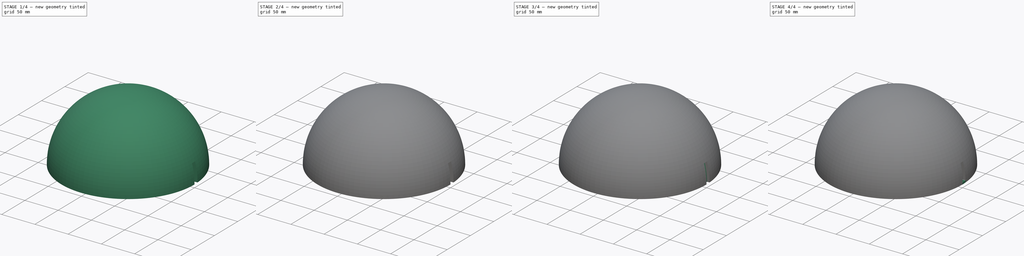
[diagram: build sequence overview — one tinted view per stage of 4, left to right]
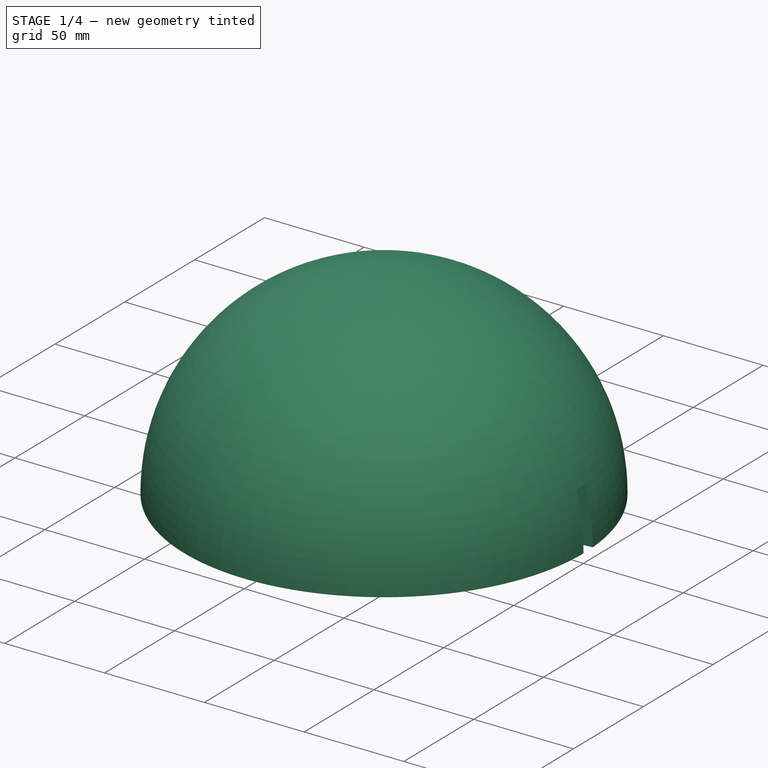
[diagram: stage 1 of 4 — iso view after this stage's code; geometry added in this stage tinted green]
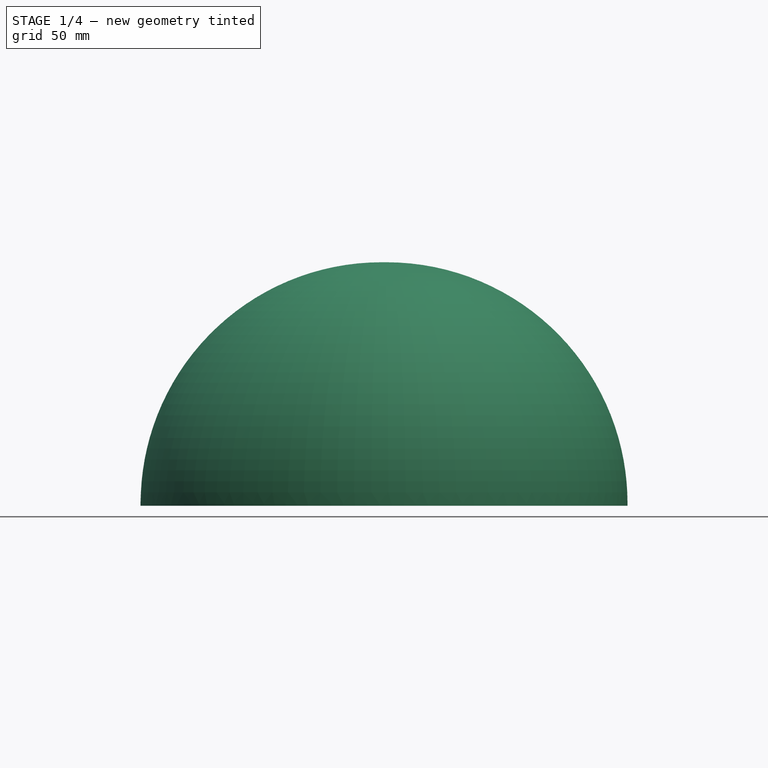
[diagram: stage 1 of 4 — front view after this stage's code; geometry added in this stage tinted green]
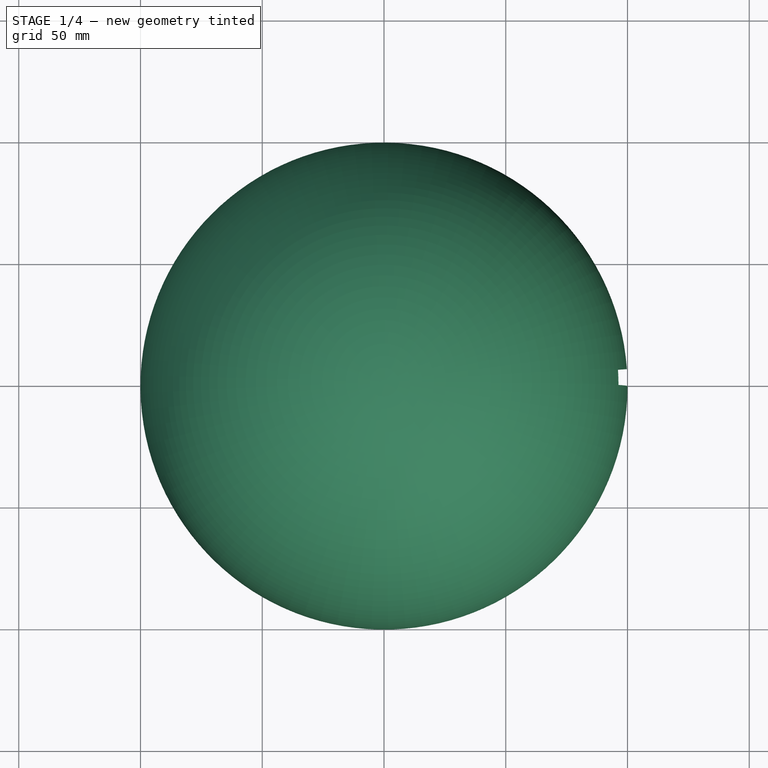
[diagram: stage 1 of 4 — top view after this stage's code; geometry added in this stage tinted green]
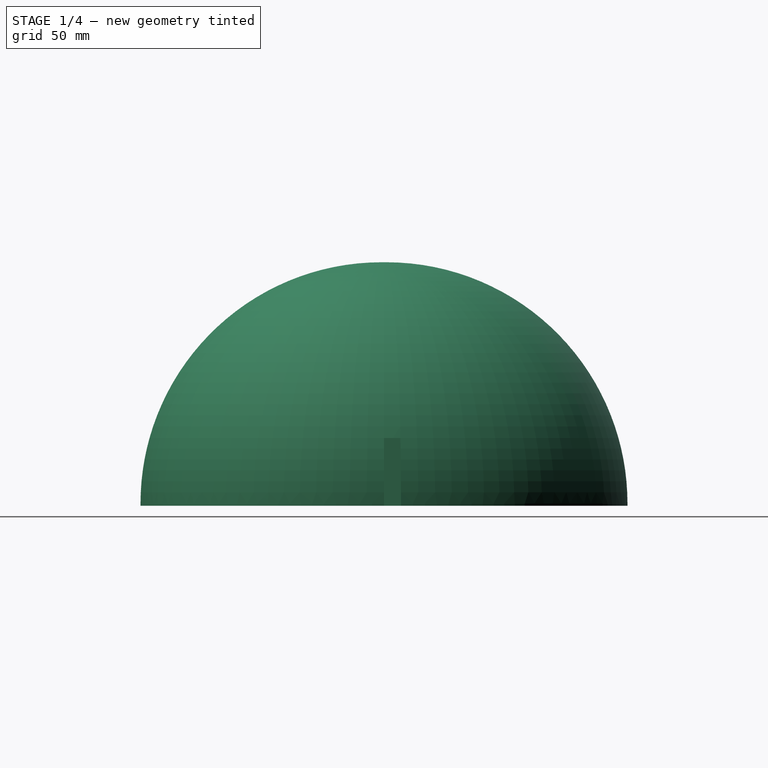
[diagram: stage 1 of 4 — right view after this stage's code; geometry added in this stage tinted green]
FCSTD DOCUMENT  (FreeCAD 0.21R33668 +26 (Git))
Label: cattoy2
License: All rights reserved
LicenseURL: https://en.wikipedia.org/wiki/All_rights_reserved
objects: Sketcher::SketchObject×7, PartDesign::Pad×5, PartDesign::SubtractiveSphere×3, PartDesign::Pocket×2, PartDesign::Fillet×1, PartDesign::Body×1
note: 30 computed .brp shape members not serialized (recipe doc carries the construction recipe); baked Part::Feature solids carry a one-line shape summary decoded from their .brp

FEATURE [Sketcher::SketchObject] Sketch
  FullyConstrained = false
  MapMode = 5
  Support = -> [XY_Plane]
  sketch-geometry (2):
    g0: Circle CenterX=0 CenterY=0 CenterZ=0 NormalX=0 NormalY=0 NormalZ=1 AngleXU=0 Radius=100
    g1: GeomPoint X=95.886 Y=28.3878 Z=0
  constraints (3):
    c: Coincident(g0,g-1)
    c: PointOnObject(g1,g0)
    c: Distance(g0,g1) = 100
FEATURE [PartDesign::Pad] Pad
  Direction = (0,0,1)
  Length = 100
  Length2 = 10
  Profile = -> Sketch
  ReferenceAxis = -> Sketch [N_Axis]
  Type = 0
FEATURE [PartDesign::Fillet] Fillet
  Base = -> Pad [Edge3]
  BaseFeature = -> Pad
  Radius = 99
  SupportTransform = false
  UseAllEdges = false
FEATURE [PartDesign::SubtractiveSphere] Sphere001
  Angle1 = 0
  Angle2 = 16
  Angle3 = 4
  AttacherType = Attacher::AttachEngine3D
  BaseFeature = -> Fillet
  Radius = 101
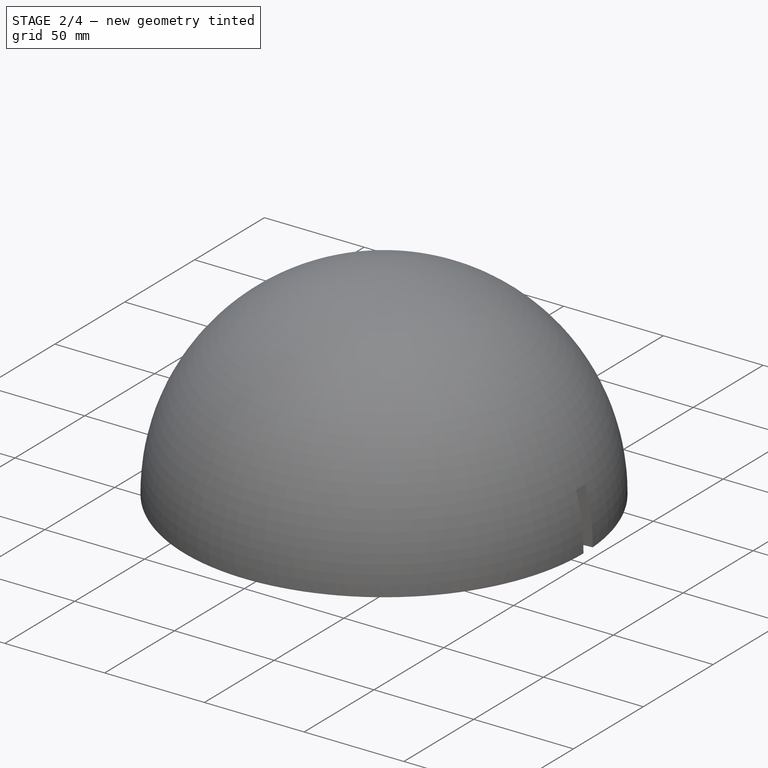
[diagram: stage 2 of 4 — iso view after this stage's code; geometry added in this stage tinted green]
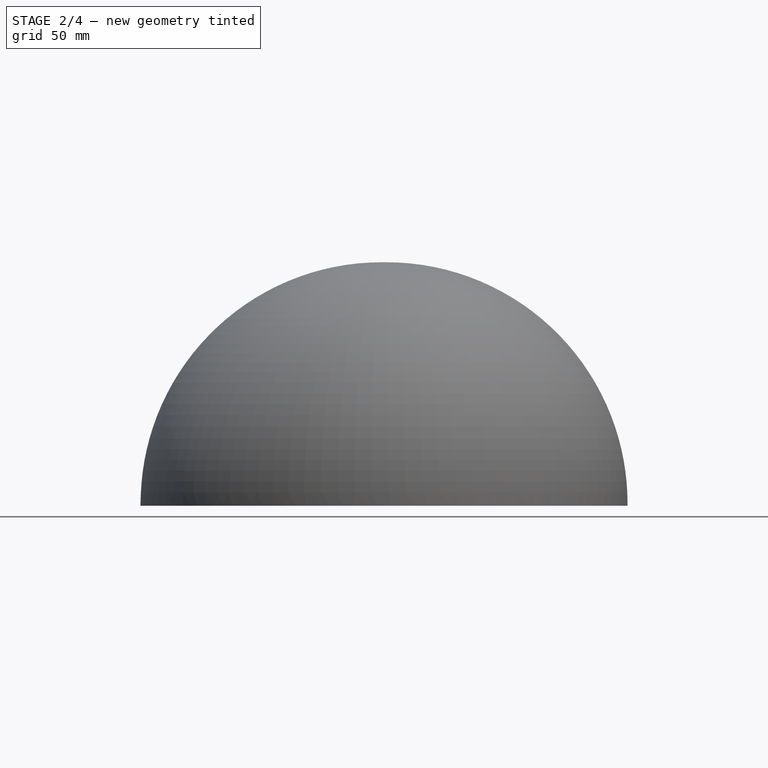
[diagram: stage 2 of 4 — front view after this stage's code; geometry added in this stage tinted green]
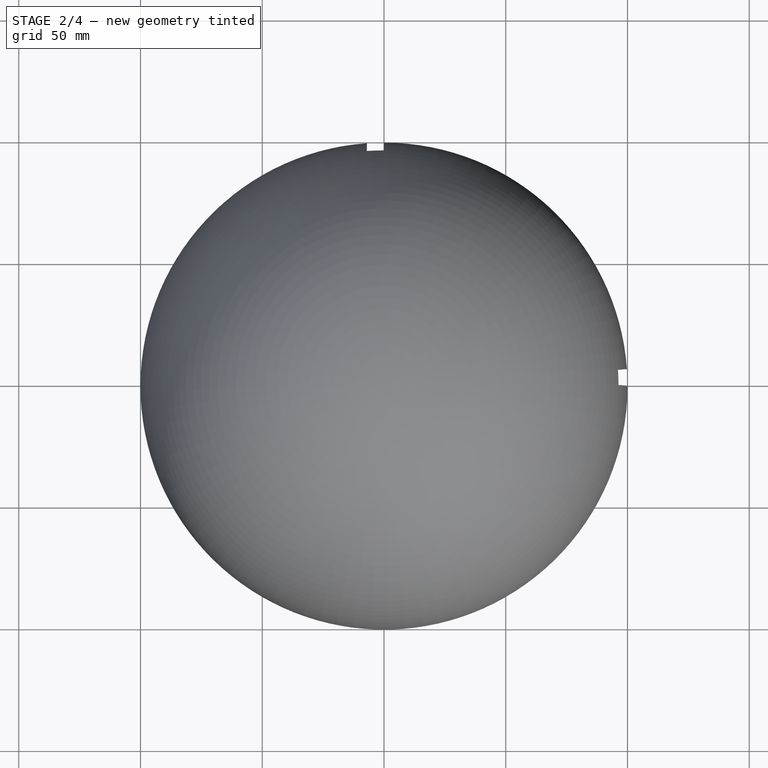
[diagram: stage 2 of 4 — top view after this stage's code; geometry added in this stage tinted green]
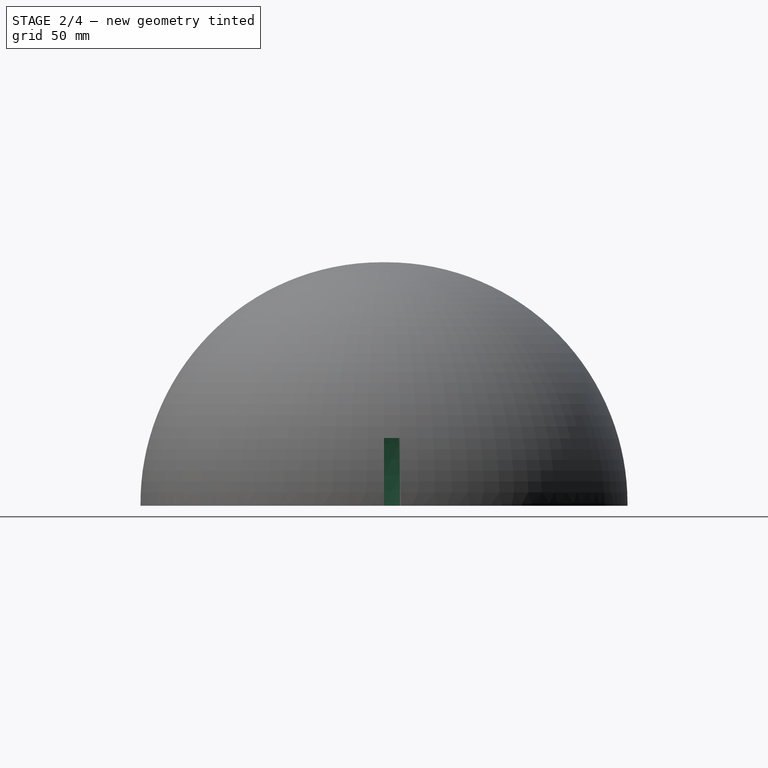
[diagram: stage 2 of 4 — right view after this stage's code; geometry added in this stage tinted green]
FEATURE [PartDesign::SubtractiveSphere] Sphere002
  Angle1 = -4
  Angle2 = 0
  Angle3 = 16
  AttacherType = Attacher::AttachEngine3D
  BaseFeature = -> Sphere001
  MapMode = 2
  Placement = pos=(0,0,0) rot=(0.57735,0.57735,0.57735;2.0944rad)
  Radius = 101
  Support = -> [Y_Axis]
FEATURE [Sketcher::SketchObject] Sketch001
  FullyConstrained = false
  MapMode = 5
  Placement = pos=(-7.0454,2e-15,-2e-15) rot=(0.57735,0.57735,0.57735;2.0944rad)
  sketch-geometry (5):
    g0: GeomPoint X=94 Y=0 Z=0
    g1: ArcOfCircle CenterX=0 CenterY=0 CenterZ=0 NormalX=0 NormalY=0 NormalZ=1 AngleXU=0 Radius=96 StartAngle=0 EndAngle=0.35094
    g2: ArcOfCircle CenterX=0 CenterY=0 CenterZ=0 NormalX=0 NormalY=0 NormalZ=1 AngleXU=0 Radius=94 StartAngle=0 EndAngle=0.35332
    g3: LineSegment StartX=88.1936 StartY=32.5253 StartZ=0 EndX=90.1488 EndY=33.0029 EndZ=0
    g4: LineSegment StartX=94 StartY=0 StartZ=0 EndX=96 EndY=0 EndZ=0
  constraints (11):
    c: PointOnObject(g0,g-1)
    c: Distance(g-1,g0) = 94
    c: Coincident(g1,g-1)
    c: PointOnObject(g1,g-1)
    c: Distance(g1,g1) = 96
    c: Coincident(g2,g1)
    c: Coincident(g2,g0)
    c: Coincident(g3,g2)
    c: Coincident(g3,g1)
    c: Coincident(g4,g2)
    c: Coincident(g4,g1)
FEATURE [Sketcher::SketchObject] Sketch003
  FullyConstrained = false
  MapMode = 5
  Placement = pos=(0,0,0) rot=(0.57735,0.57735,0.57735;4.18879rad)
  sketch-geometry (4):
    g0: ArcOfCircle CenterX=0 CenterY=0 CenterZ=0 NormalX=0 NormalY=0 NormalZ=1 AngleXU=0 Radius=96 StartAngle=1.20998 EndAngle=1.5708
    g1: ArcOfCircle CenterX=0 CenterY=0 CenterZ=0 NormalX=0 NormalY=0 NormalZ=1 AngleXU=0 Radius=94 StartAngle=1.20715 EndAngle=1.5708
    g2: LineSegment StartX=5.9e-15 StartY=96 StartZ=0 EndX=0 EndY=94 EndZ=0
    g3: LineSegment StartX=33.434 StartY=87.8531 StartZ=0 EndX=33.8918 EndY=89.8184 EndZ=0
  constraints (10):
    c: Coincident(g0,g-1)
    c: PointOnObject(g0,g-2)
    c: Distance(g0,g0) = 96
    c: Coincident(g1,g0)
    c: PointOnObject(g1,g-2)
    c: Distance(g1,g0) = 94
    c: Coincident(g2,g0)
    c: Coincident(g2,g1)
    c: Coincident(g3,g1)
    c: Coincident(g3,g0)
FEATURE [PartDesign::SubtractiveSphere] Sphere
  Angle1 = -90
  Angle2 = 90
  Angle3 = 360
  AttacherType = Attacher::AttachEngine3D
  BaseFeature = -> Sphere002
  Radius = 94
FEATURE [PartDesign::Pad] Pad001
  BaseFeature = -> Sphere
  Direction = (1,0,0)
  Length = 10
  Length2 = 10
  Profile = -> Sketch001
  ReferenceAxis = -> Sketch001 [N_Axis]
  Type = 0
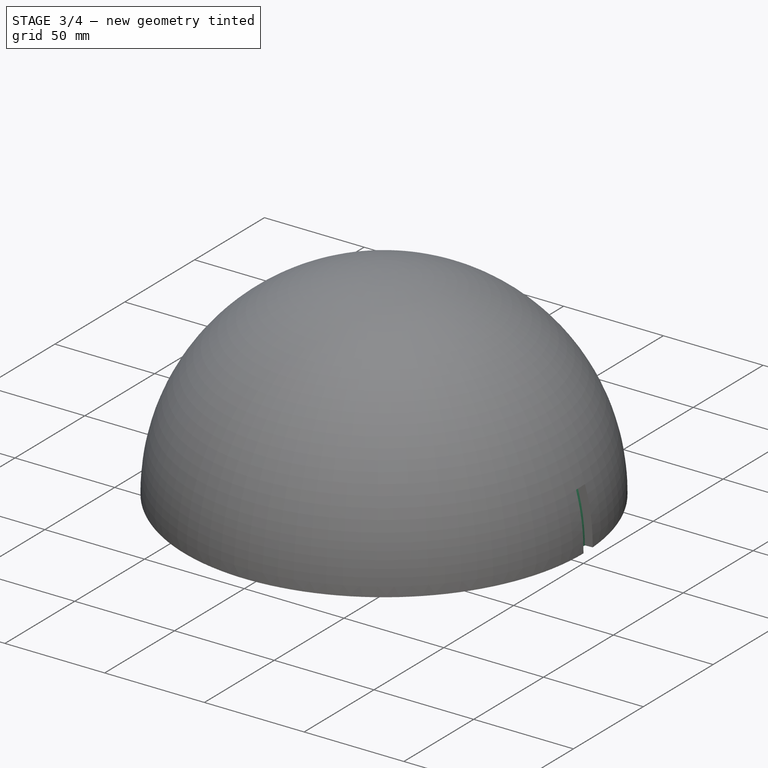
[diagram: stage 3 of 4 — iso view after this stage's code; geometry added in this stage tinted green]
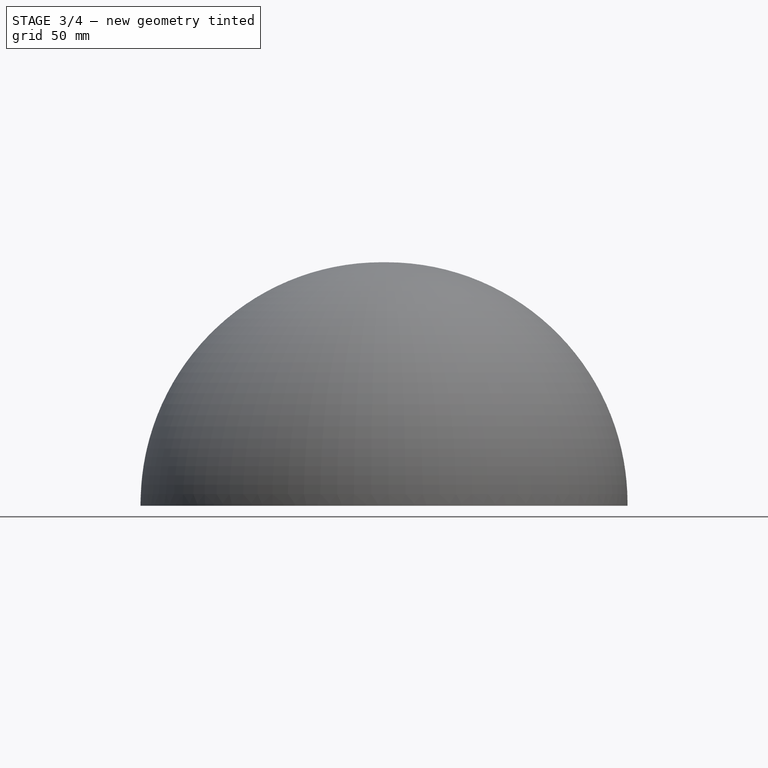
[diagram: stage 3 of 4 — front view after this stage's code; geometry added in this stage tinted green]
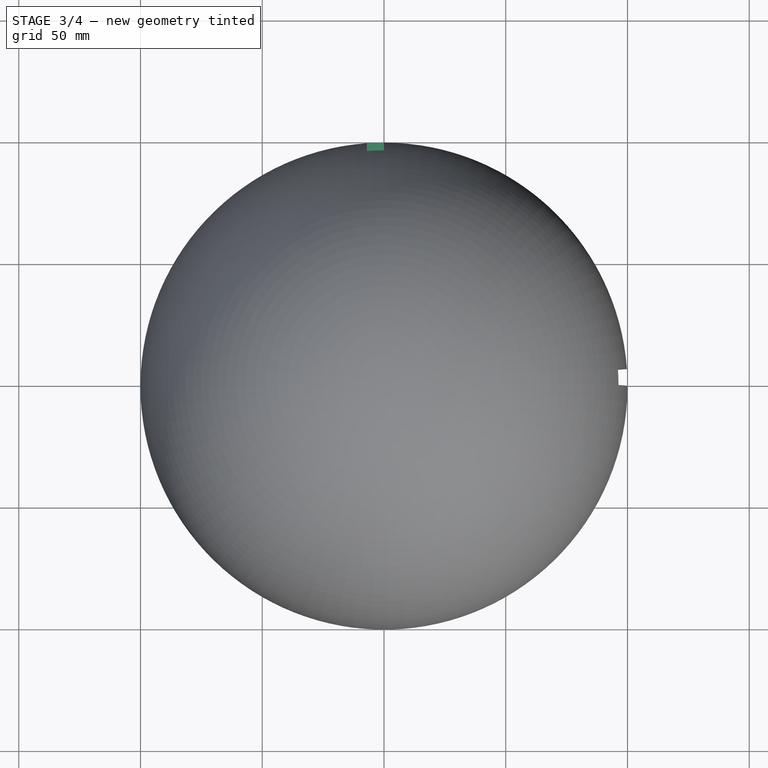
[diagram: stage 3 of 4 — top view after this stage's code; geometry added in this stage tinted green]
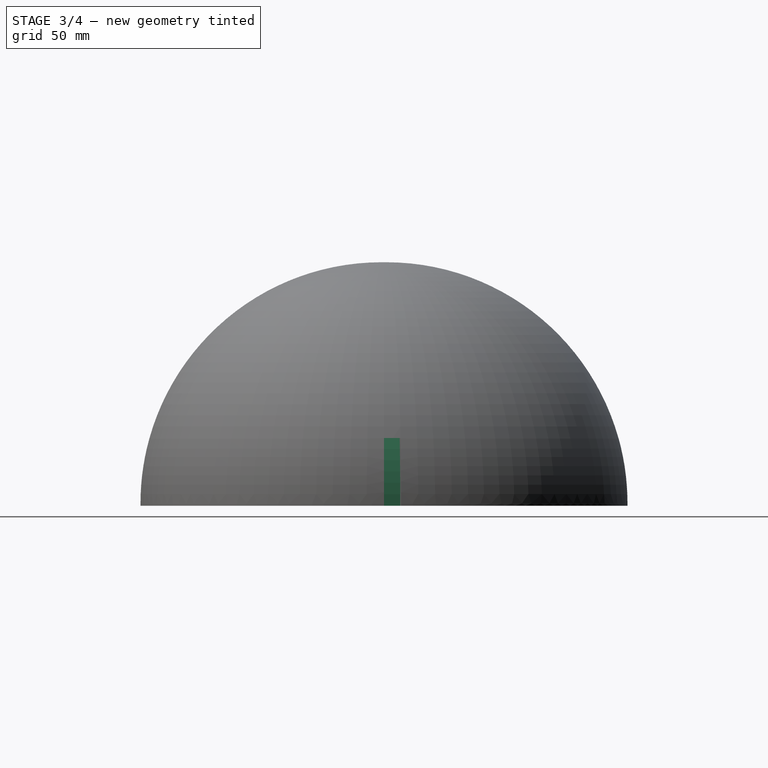
[diagram: stage 3 of 4 — right view after this stage's code; geometry added in this stage tinted green]
FEATURE [PartDesign::Pad] Pad003
  BaseFeature = -> Pad001
  Direction = (0,1,0)
  Length = 10
  Length2 = 10
  Profile = -> Sketch003
  ReferenceAxis = -> Sketch003 [N_Axis]
  Type = 0
FEATURE [Sketcher::SketchObject] Sketch005
  FullyConstrained = false
  MapMode = 5
  Placement = pos=(-7.0454,0,0) rot=(0.57735,0.57735,0.57735;2.0944rad)
  sketch-geometry (7):
    g0: LineSegment StartX=99.955 StartY=3 StartZ=0 EndX=94.9526 EndY=3 EndZ=0
    g1: LineSegment StartX=100 StartY=0 StartZ=0 EndX=95 EndY=0 EndZ=0
    g2: ArcOfCircle CenterX=0 CenterY=0 CenterZ=0 NormalX=0 NormalY=0 NormalZ=1 AngleXU=0 Radius=100 StartAngle=0 EndAngle=0.0300045
    g3: ArcOfCircle CenterX=0 CenterY=0 CenterZ=0 NormalX=0 NormalY=0 NormalZ=1 AngleXU=0 Radius=95 StartAngle=0 EndAngle=0.0315842
    g4: GeomPoint X=96.2241 Y=3 Z=0
    g5: GeomPoint X=96.2241 Y=0 Z=0
    g6: LineSegment StartX=96.2241 StartY=3 StartZ=0 EndX=96.2241 EndY=0 EndZ=0
  constraints (17):
    c: PointOnObject(g1,g-1)
    c: PointOnObject(g1,g-1)
    c: Horizontal(g0)
    c: Coincident(g2,g-1)
    c: Coincident(g2,g1)
    c: Coincident(g2,g0)
    c: Coincident(g3,g2)
    c: Coincident(g3,g1)
    c: Coincident(g3,g0)
    c: Distance(g2,g1) = 95
    c: Distance(g2,g1) = 100
    c: PointOnObject(g4,g0)
    c: PointOnObject(g5,g1)
    c: Coincident(g6,g4)
    c: Coincident(g6,g5)
    c: Vertical(g6)
    c: Distance(g6) = 3
FEATURE [Sketcher::SketchObject] Sketch006
  FullyConstrained = false
  MapMode = 5
  Placement = pos=(0,0,0) rot=(0.998783,0.034878,0.034878;1.57201rad)
  sketch-geometry (7):
    g0: ArcOfCircle CenterX=0 CenterY=0 CenterZ=0 NormalX=0 NormalY=0 NormalZ=1 AngleXU=0 Radius=100 StartAngle=0 EndAngle=0.0300045
    g1: ArcOfCircle CenterX=0 CenterY=0 CenterZ=0 NormalX=0 NormalY=0 NormalZ=1 AngleXU=0 Radius=95 StartAngle=0 EndAngle=0.0315842
    g2: LineSegment StartX=94.9526 StartY=3 StartZ=0 EndX=99.955 EndY=3 EndZ=0
    g3: LineSegment StartX=95 StartY=0 StartZ=0 EndX=100 EndY=0 EndZ=0
    g4: GeomPoint X=97.6795 Y=0 Z=0
    g5: GeomPoint X=97.6795 Y=3 Z=0
    g6: LineSegment StartX=97.6795 StartY=3 StartZ=0 EndX=97.6795 EndY=0 EndZ=0
  constraints (17):
    c: Coincident(g0,g-1)
    c: PointOnObject(g0,g-1)
    c: Coincident(g1,g0)
    c: PointOnObject(g1,g-1)
    c: Distance(g0,g1) = 95
    c: Distance(g0,g0) = 100
    c: Coincident(g2,g1)
    c: Coincident(g2,g0)
    c: Coincident(g3,g1)
    c: Coincident(g3,g0)
    c: Horizontal(g2)
    c: PointOnObject(g4,g3)
    c: PointOnObject(g5,g2)
    c: Coincident(g6,g5)
    c: Coincident(g6,g4)
    c: Vertical(g6)
    c: Distance(g6) = 3
FEATURE [PartDesign::Pad] Pad004
  BaseFeature = -> Pad003
  Direction = (1,0,0)
  Length = 7.2
  Length2 = 10
  Profile = -> Sketch005
  ReferenceAxis = -> Sketch005 [N_Axis]
  Type = 0
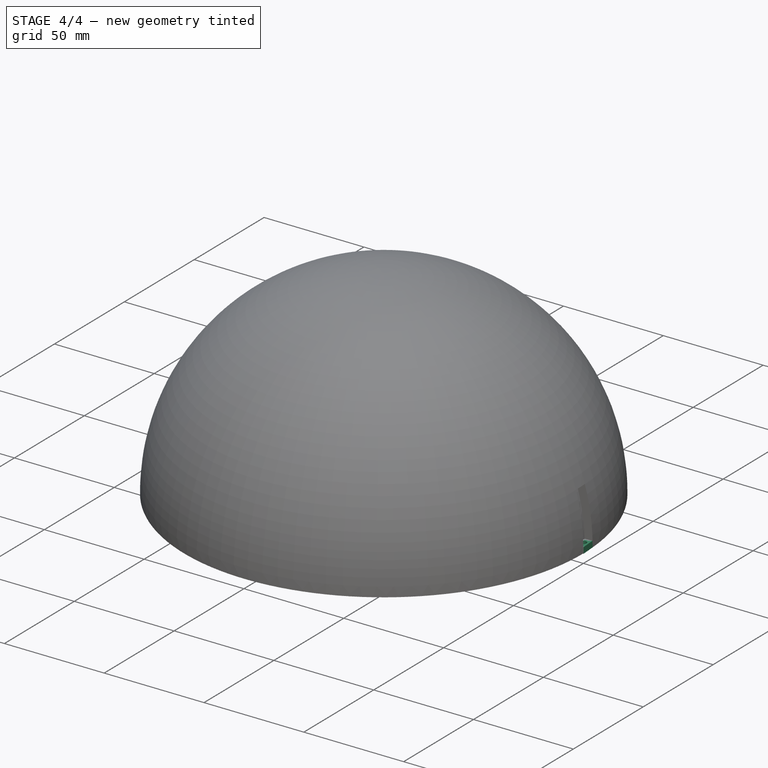
[diagram: stage 4 of 4 — iso view after this stage's code; geometry added in this stage tinted green]
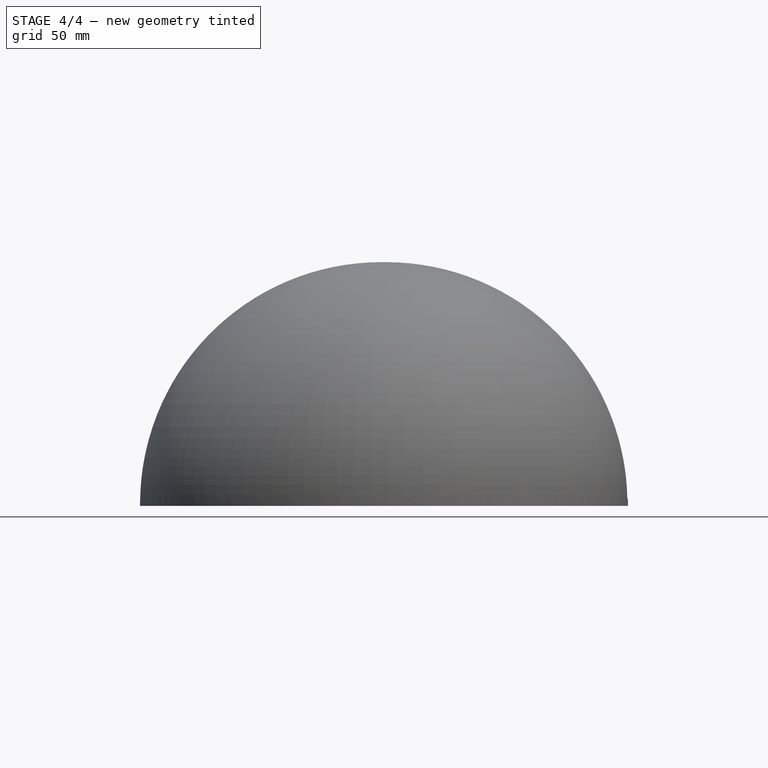
[diagram: stage 4 of 4 — front view after this stage's code; geometry added in this stage tinted green]
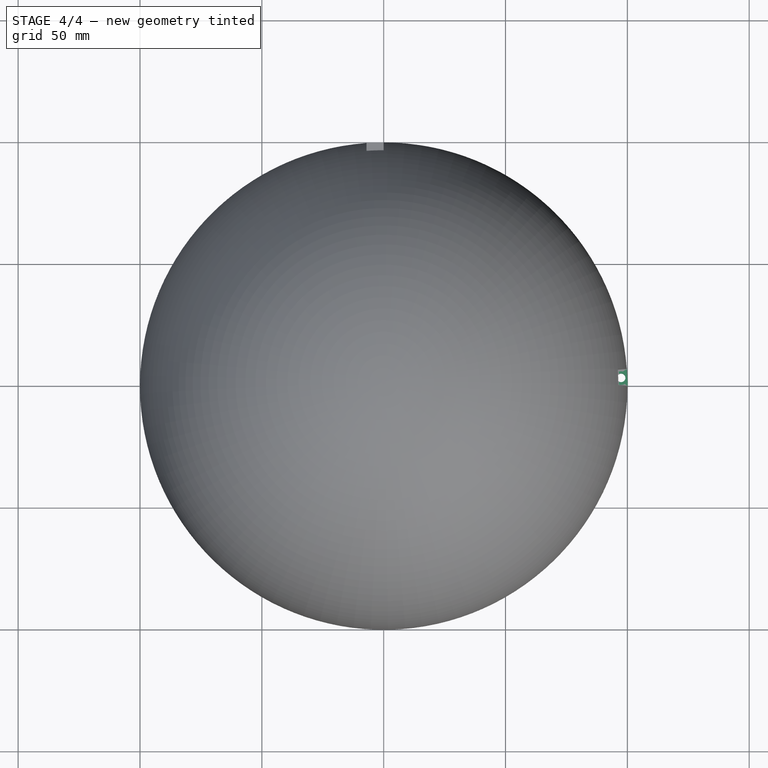
[diagram: stage 4 of 4 — top view after this stage's code; geometry added in this stage tinted green]
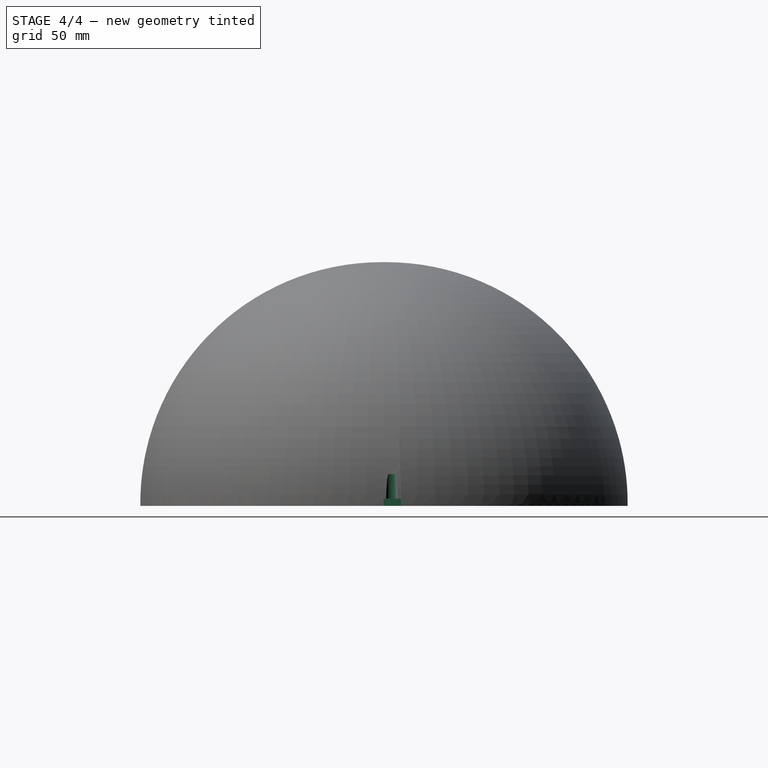
[diagram: stage 4 of 4 — right view after this stage's code; geometry added in this stage tinted green]
FEATURE [PartDesign::Pad] Pad005
  BaseFeature = -> Pad004
  Direction = (0.0697565,-0.997564,-3e-16)
  Length = 7.2
  Length2 = 10
  Profile = -> Sketch006
  ReferenceAxis = -> Sketch006 [N_Axis]
  Type = 0
FEATURE [Sketcher::SketchObject] Sketch007
  FullyConstrained = false
  MapMode = 5
  Placement = pos=(0,0,0) rot=(1,0,0;3.14159rad)
  Support = -> [Pad005]
  sketch-geometry (2):
    g0: Circle CenterX=97.4422 CenterY=-3.35791 CenterZ=0 NormalX=0 NormalY=0 NormalZ=1 AngleXU=0 Radius=1.75
    g1: GeomPoint X=97.7553 Y=-1.63615 Z=0
  constraints (3):
    c: Distance(g-1,g0) = 97.5
    c: PointOnObject(g1,g0)
    c: Distance(g0,g1) = 1.75
FEATURE [PartDesign::Pocket] Pocket
  BaseFeature = -> Pad005
  Direction = (0,0,1)
  Length = 3
  Length2 = 5
  Profile = -> Sketch007
  ReferenceAxis = -> Sketch007 [N_Axis]
  Type = 0
FEATURE [Sketcher::SketchObject] Sketch008
  FullyConstrained = false
  MapMode = 5
  Placement = pos=(0,-1e-15,3) rot=(0,0,1;0rad)
  Support = -> [Pocket]
  sketch-geometry (2):
    g0: Circle CenterX=97.4457 CenterY=3.2524 CenterZ=0 NormalX=0 NormalY=0 NormalZ=1 AngleXU=0 Radius=2.8
    g1: GeomPoint X=97.7678 Y=6.03381 Z=0
  constraints (3):
    c: PointOnObject(g1,g0)
    c: Distance(g0,g1) = 2.8
    c: Distance(g-1,g0) = 97.5
FEATURE [PartDesign::Pocket] Pocket001
  BaseFeature = -> Pocket
  Direction = (0,3e-16,-1)
  Length = 10
  Length2 = 5
  Profile = -> Sketch008
  ReferenceAxis = -> Sketch008 [N_Axis]
  Reversed = true
  Type = 0
FEATURE [PartDesign::Body] Body  label="Körper"
  Group = -> [Sketch,Pad,Fillet,Sphere001,Sphere002,Sketch001,Sketch003,Sphere,Pad001,Pad003,Sketch005,Sketch006,Pad004,Pad005,Sketch007,Pocket,Sketch008,Pocket001]
  Origin = -> Origin
  Tip = -> Pocket001
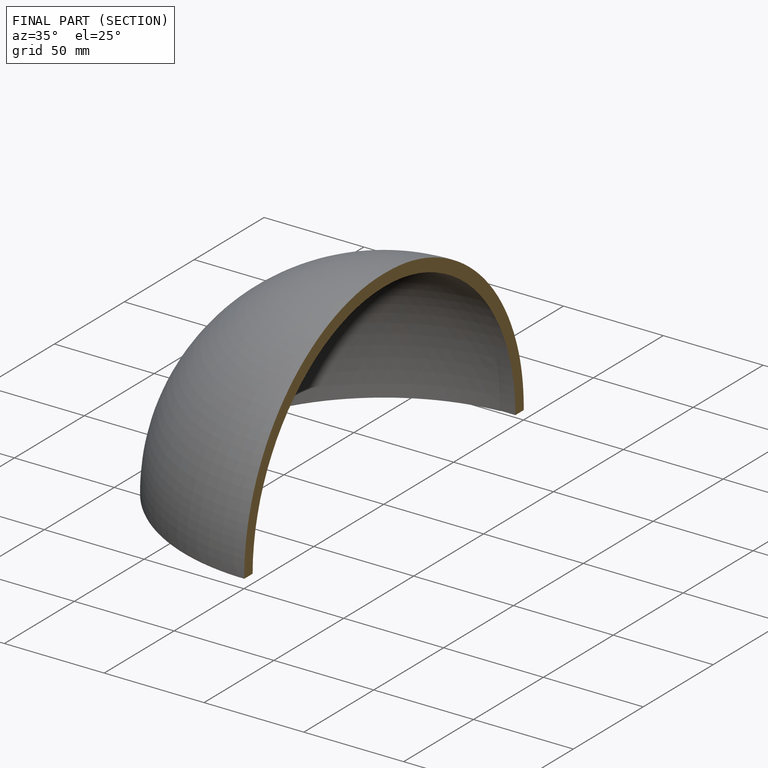
[diagram: finished part — half-section view (interior)]
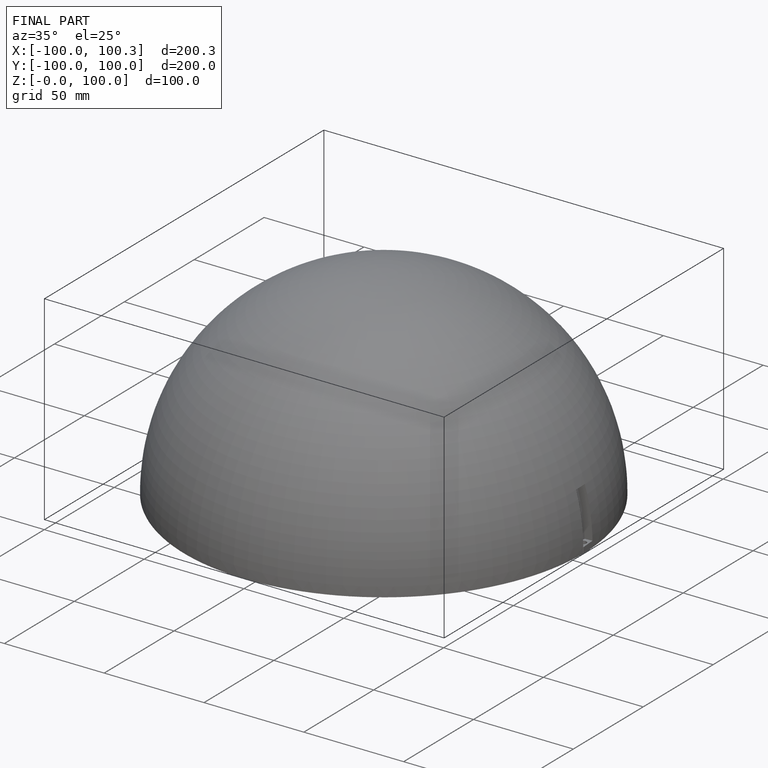
[diagram: finished part — iso view with bounding-box wireframe]
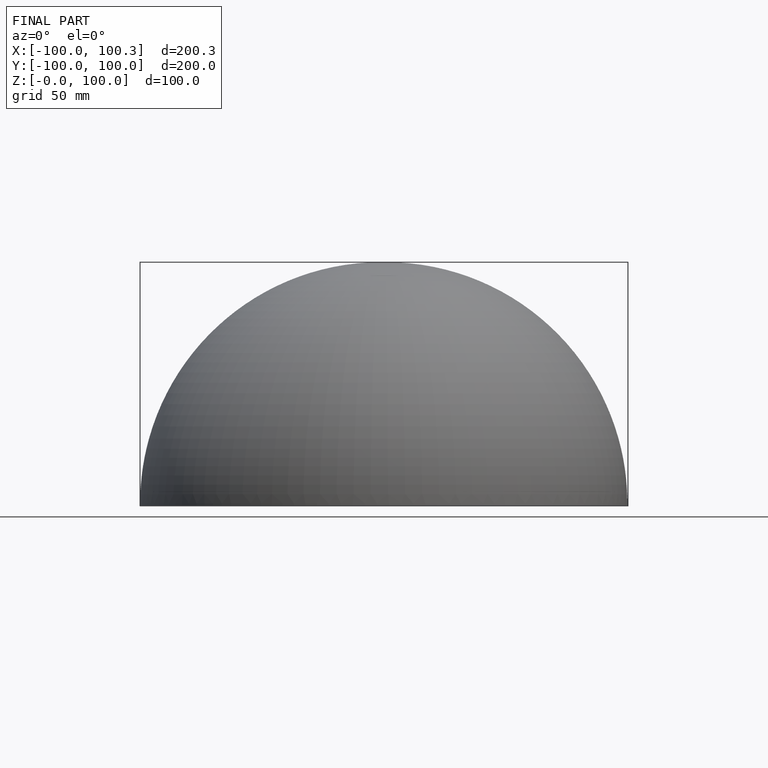
[diagram: finished part — front view with bounding-box wireframe]
